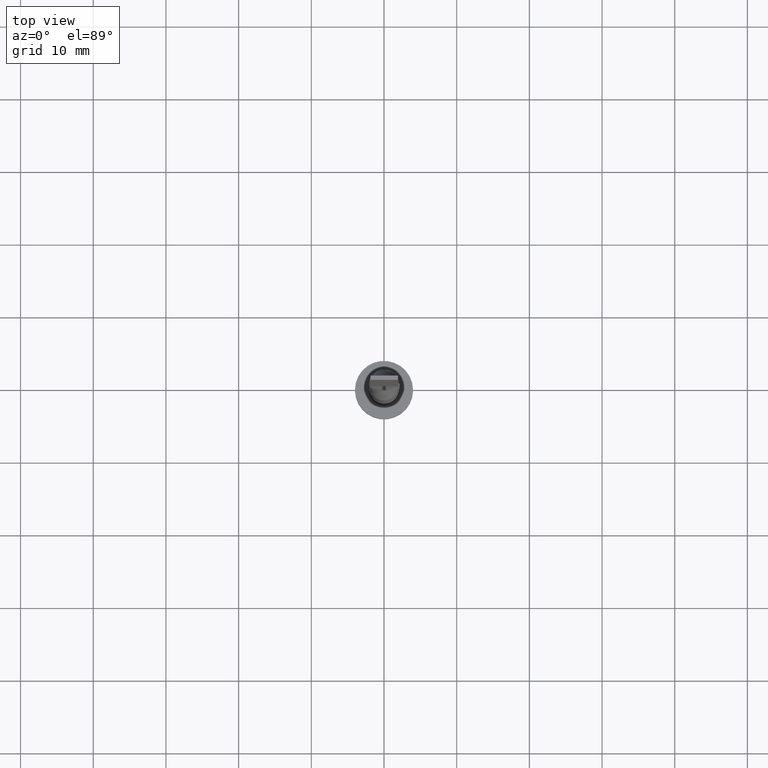
[diagram: clean part render]
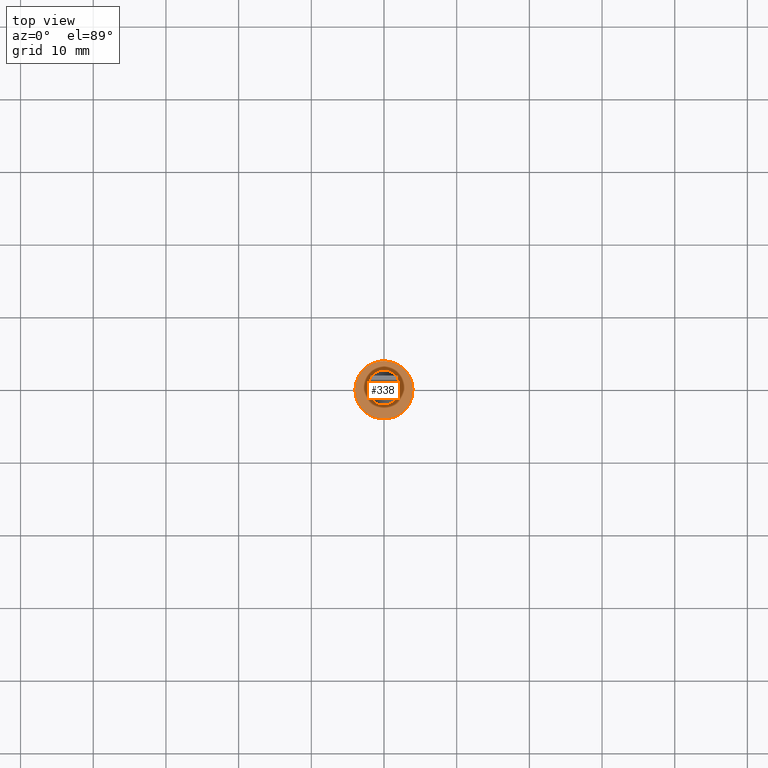
[diagram: same view with one face highlighted and labeled with its STEP entity id]
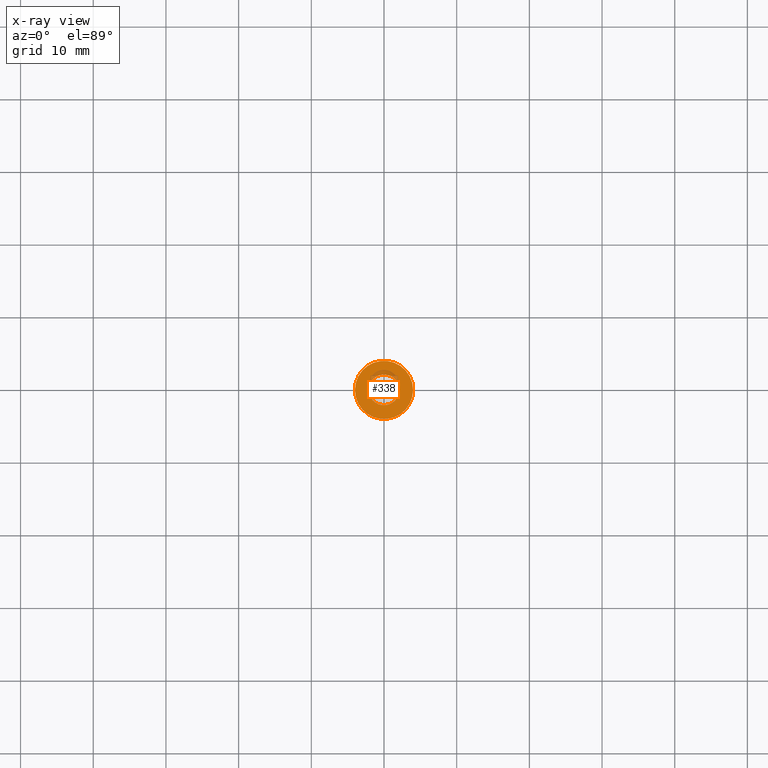
[diagram: x-ray of the same camera — body ghosted, the highlighted face saturated]
A machine part, top view. The second image highlights one B-rep face of the part: STEP entity #338.
The next image is the same camera in x-ray: the body ghosted, the highlighted face saturated — about 8% of this face is hidden behind the body in this view.
In plain terms, the highlighted planar face has unit normal (0, 0, 1).
Its self-contained STEP definition (entity closure, byte-faithful):
#17 = CARTESIAN_POINT ( 'NONE',  ( -4.000000000000000000, 0.000000000000000000, 3.000000000000000000 ) ) ;
#23 = AXIS2_PLACEMENT_3D ( 'NONE', #112, #201, #422 ) ;
#29 = ORIENTED_EDGE ( 'NONE', *, *, #316, .T. ) ;
#60 = VERTEX_POINT ( 'NONE', #411 ) ;
#73 = EDGE_LOOP ( 'NONE', ( #29, #169 ) ) ;
#88 = DIRECTION ( 'NONE',  ( 0.000000000000000000, 0.000000000000000000, 1.000000000000000000 ) ) ;
#91 = PLANE ( 'NONE',  #284 ) ;
#98 = EDGE_LOOP ( 'NONE', ( #152, #398 ) ) ;
#112 = CARTESIAN_POINT ( 'NONE',  ( 0.000000000000000000, 0.000000000000000000, 3.000000000000000000 ) ) ;
#132 = AXIS2_PLACEMENT_3D ( 'NONE', #400, #88, #505 ) ;
#140 = CARTESIAN_POINT ( 'NONE',  ( -2.100000000000000089, 0.000000000000000000, 3.000000000000000000 ) ) ;
#152 = ORIENTED_EDGE ( 'NONE', *, *, #551, .F. ) ;
#168 = CARTESIAN_POINT ( 'NONE',  ( 0.000000000000000000, 0.000000000000000000, 3.000000000000000000 ) ) ;
#169 = ORIENTED_EDGE ( 'NONE', *, *, #481, .T. ) ;
#172 = DIRECTION ( 'NONE',  ( 0.000000000000000000, 0.000000000000000000, 1.000000000000000000 ) ) ;
#201 = DIRECTION ( 'NONE',  ( 0.000000000000000000, 0.000000000000000000, 1.000000000000000000 ) ) ;
#209 = EDGE_CURVE ( 'NONE', #60, #416, #443, .T. ) ;
#210 = CARTESIAN_POINT ( 'NONE',  ( 0.000000000000000000, 0.000000000000000000, 3.000000000000000000 ) ) ;
#211 = DIRECTION ( 'NONE',  ( 0.000000000000000000, 0.000000000000000000, 1.000000000000000000 ) ) ;
#244 = CARTESIAN_POINT ( 'NONE',  ( 0.000000000000000000, 0.000000000000000000, 3.000000000000000000 ) ) ;
#269 = AXIS2_PLACEMENT_3D ( 'NONE', #210, #172, #480 ) ;
#284 = AXIS2_PLACEMENT_3D ( 'NONE', #168, #211, #304 ) ;
#286 = CARTESIAN_POINT ( 'NONE',  ( 4.000000000000000000, 4.898587196589412829E-16, 3.000000000000000000 ) ) ;
#294 = CIRCLE ( 'NONE', #477, 4.000000000000000000 ) ;
#304 = DIRECTION ( 'NONE',  ( 1.000000000000000000, 0.000000000000000000, -0.000000000000000000 ) ) ;
#316 = EDGE_CURVE ( 'NONE', #493, #455, #385, .T. ) ;
#334 = DIRECTION ( 'NONE',  ( 1.000000000000000000, 0.000000000000000000, 0.000000000000000000 ) ) ;
#338 = ADVANCED_FACE ( 'NONE', ( #378, #372 ), #91, .T. ) ;
#372 = FACE_OUTER_BOUND ( 'NONE', #73, .T. ) ;
#378 = FACE_BOUND ( 'NONE', #98, .T. ) ;
#384 = DIRECTION ( 'NONE',  ( 0.000000000000000000, 0.000000000000000000, 1.000000000000000000 ) ) ;
#385 = CIRCLE ( 'NONE', #132, 4.000000000000000000 ) ;
#398 = ORIENTED_EDGE ( 'NONE', *, *, #209, .F. ) ;
#400 = CARTESIAN_POINT ( 'NONE',  ( 0.000000000000000000, 0.000000000000000000, 3.000000000000000000 ) ) ;
#411 = CARTESIAN_POINT ( 'NONE',  ( 2.100000000000000089, 2.571758278209441957E-16, 3.000000000000000000 ) ) ;
#416 = VERTEX_POINT ( 'NONE', #140 ) ;
#422 = DIRECTION ( 'NONE',  ( 1.000000000000000000, 0.000000000000000000, 0.000000000000000000 ) ) ;
#443 = CIRCLE ( 'NONE', #269, 2.100000000000000089 ) ;
#455 = VERTEX_POINT ( 'NONE', #286 ) ;
#477 = AXIS2_PLACEMENT_3D ( 'NONE', #244, #384, #334 ) ;
#480 = DIRECTION ( 'NONE',  ( 1.000000000000000000, 0.000000000000000000, 0.000000000000000000 ) ) ;
#481 = EDGE_CURVE ( 'NONE', #455, #493, #294, .T. ) ;
#493 = VERTEX_POINT ( 'NONE', #17 ) ;
#505 = DIRECTION ( 'NONE',  ( 1.000000000000000000, 0.000000000000000000, 0.000000000000000000 ) ) ;
#545 = CIRCLE ( 'NONE', #23, 2.100000000000000089 ) ;
#551 = EDGE_CURVE ( 'NONE', #416, #60, #545, .T. ) ;